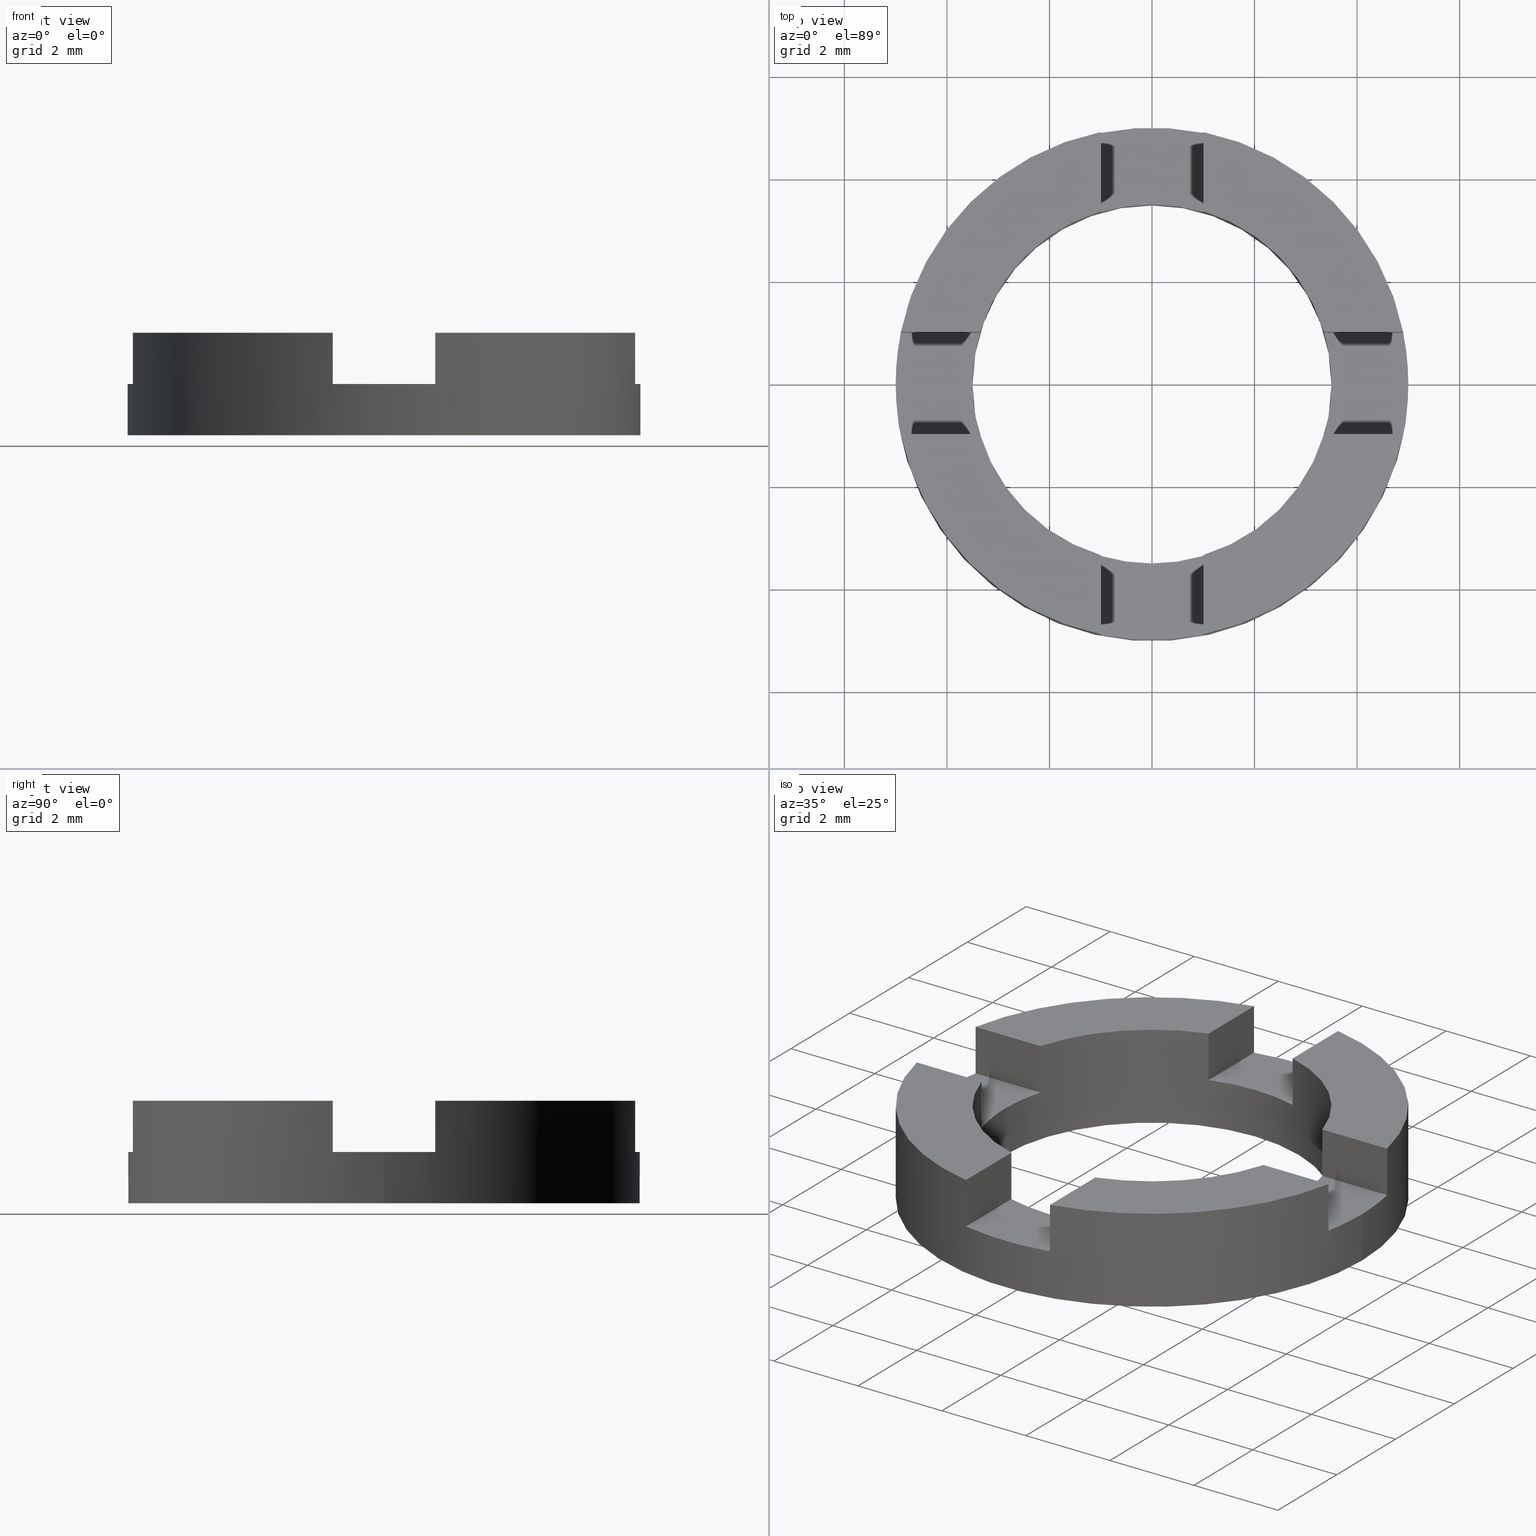
[diagram: canonical four-view strip — front | top / right | iso, engineering-drawing reading convention]
A machine part, canonical four-view strip (front | top / right | iso — engineering-drawing reading convention). The complete STEP part file that produces these views, byte-faithful:
ISO-10303-21;
HEADER;
FILE_DESCRIPTION (( 'STEP AP203' ),
    '1' );
FILE_NAME ('514025.step',
    '2024-12-24T07:07:24',
    ( '' ),
    ( '' ),
    'SwSTEP 2.0',
    'SolidWorks 2020',
    '' );
FILE_SCHEMA (( 'CONFIG_CONTROL_DESIGN' ));
ENDSEC;

DATA;
#1 = CARTESIAN_POINT ( 'NONE',  ( 0.000000000000000000, 0.000000000000000000, 2.000000000000000000 ) ) ;
#2 = CARTESIAN_POINT ( 'NONE',  ( -0.9999999999996526112, -3.354101966249788180, 2.000000000000000000 ) ) ;
#3 = AXIS2_PLACEMENT_3D ( 'NONE', #311, #383, #80 ) ;
#4 = CIRCLE ( 'NONE', #725, 3.500000000000000000 ) ;
#5 = FACE_BOUND ( 'NONE', #195, .T. ) ;
#6 = DIRECTION ( 'NONE',  ( -1.000000000000000000, 0.000000000000000000, -0.000000000000000000 ) ) ;
#7 = ORIENTED_EDGE ( 'NONE', *, *, #703, .T. ) ;
#8 = CARTESIAN_POINT ( 'NONE',  ( -0.9999999999996526112, -3.305037895306154550, 1.000000000000000000 ) ) ;
#9 = FACE_OUTER_BOUND ( 'NONE', #409, .T. ) ;
#10 = VERTEX_POINT ( 'NONE', #339 ) ;
#11 = CARTESIAN_POINT ( 'NONE',  ( 0.000000000000000000, 0.000000000000000000, 1.000000000000000000 ) ) ;
#12 = EDGE_CURVE ( 'NONE', #44, #113, #588, .T. ) ;
#13 = ORIENTED_EDGE ( 'NONE', *, *, #637, .F. ) ;
#14 = DIRECTION ( 'NONE',  ( -1.000000000000000000, 0.000000000000000000, 0.000000000000000000 ) ) ;
#15 = VERTEX_POINT ( 'NONE', #667 ) ;
#16 = CARTESIAN_POINT ( 'NONE',  ( 0.000000000000000000, 0.000000000000000000, 1.000000000000000000 ) ) ;
#17 = ORIENTED_EDGE ( 'NONE', *, *, #342, .T. ) ;
#18 = VECTOR ( 'NONE', #307, 1000.000000000000000 ) ;
#19 = VECTOR ( 'NONE', #26, 1000.000000000000000 ) ;
#20 = EDGE_CURVE ( 'NONE', #636, #141, #66, .T. ) ;
#21 = DIRECTION ( 'NONE',  ( 1.279323200775837961E-16, -1.000000000000000000, 0.000000000000000000 ) ) ;
#22 = LOCAL_TIME ( 15, 7, 24.00000000000000000, #585 ) ;
#23 = ORIENTED_EDGE ( 'NONE', *, *, #619, .T. ) ;
#24 = PLANE ( 'NONE',  #434 ) ;
#25 = ORIENTED_EDGE ( 'NONE', *, *, #654, .F. ) ;
#26 = DIRECTION ( 'NONE',  ( -0.000000000000000000, -0.000000000000000000, -1.000000000000000000 ) ) ;
#27 = ORIENTED_EDGE ( 'NONE', *, *, #650, .T. ) ;
#28 = DIRECTION ( 'NONE',  ( -1.000000000000000000, 0.000000000000000000, 0.000000000000000000 ) ) ;
#29 = EDGE_LOOP ( 'NONE', ( #13, #769, #165, #620 ) ) ;
#30 = ADVANCED_FACE ( 'NONE', ( #300 ), #545, .T. ) ;
#31 = LINE ( 'NONE', #517, #391 ) ;
#32 = DATE_AND_TIME ( #402, #439 ) ;
#33 = AXIS2_PLACEMENT_3D ( 'NONE', #609, #430, #733 ) ;
#34 = LINE ( 'NONE', #691, #488 ) ;
#35 = VECTOR ( 'NONE', #132, 1000.000000000000000 ) ;
#36 = VECTOR ( 'NONE', #328, 1000.000000000000000 ) ;
#37 =( NAMED_UNIT ( * ) PLANE_ANGLE_UNIT ( ) SI_UNIT ( $, .RADIAN. ) );
#38 = ADVANCED_FACE ( 'NONE', ( #304 ), #777, .F. ) ;
#39 = APPLICATION_CONTEXT ( 'configuration controlled 3d designs of mechanical parts and assemblies' ) ;
#40 = DATE_AND_TIME ( #395, #22 ) ;
#41 = VERTEX_POINT ( 'NONE', #360 ) ;
#42 = EDGE_CURVE ( 'NONE', #167, #532, #237, .T. ) ;
#43 = CALENDAR_DATE ( 2024, 24, 12 ) ;
#44 = VERTEX_POINT ( 'NONE', #130 ) ;
#45 = VECTOR ( 'NONE', #578, 1000.000000000000000 ) ;
#46 = DIRECTION ( 'NONE',  ( 0.000000000000000000, 0.000000000000000000, 1.000000000000000000 ) ) ;
#47 = ORIENTED_EDGE ( 'NONE', *, *, #663, .F. ) ;
#48 = FACE_OUTER_BOUND ( 'NONE', #500, .T. ) ;
#49 = ORIENTED_EDGE ( 'NONE', *, *, #196, .F. ) ;
#50 = LINE ( 'NONE', #234, #602 ) ;
#51 = CC_DESIGN_PERSON_AND_ORGANIZATION_ASSIGNMENT ( #525, #760, ( #496 ) ) ;
#52 = LINE ( 'NONE', #468, #676 ) ;
#53 = VERTEX_POINT ( 'NONE', #478 ) ;
#54 = VECTOR ( 'NONE', #416, 1000.000000000000000 ) ;
#55 = CARTESIAN_POINT ( 'NONE',  ( 0.000000000000000000, 0.000000000000000000, 0.000000000000000000 ) ) ;
#56 = CC_DESIGN_APPROVAL ( #562, ( #697 ) ) ;
#57 = CARTESIAN_POINT ( 'NONE',  ( 3.354101966249698030, -0.9999999999999547029, 2.000000000000000000 ) ) ;
#58 = DIRECTION ( 'NONE',  ( -0.000000000000000000, -0.000000000000000000, -1.000000000000000000 ) ) ;
#59 = CARTESIAN_POINT ( 'NONE',  ( 0.000000000000000000, 0.000000000000000000, 1.000000000000000000 ) ) ;
#60 = EDGE_CURVE ( 'NONE', #374, #10, #364, .T. ) ;
#61 = DIRECTION ( 'NONE',  ( 1.000000000000000000, 0.000000000000000000, -0.000000000000000000 ) ) ;
#62 = DIRECTION ( 'NONE',  ( 0.000000000000000000, 0.000000000000000000, 1.000000000000000000 ) ) ;
#63 = LINE ( 'NONE', #535, #54 ) ;
#64 = DIRECTION ( 'NONE',  ( 1.000000000000000000, 0.000000000000000000, -0.000000000000000000 ) ) ;
#65 = EDGE_CURVE ( 'NONE', #319, #113, #632, .T. ) ;
#66 = LINE ( 'NONE', #483, #536 ) ;
#67 = ORIENTED_EDGE ( 'NONE', *, *, #501, .T. ) ;
#68 = CARTESIAN_POINT ( 'NONE',  ( -3.354101966249594557, -1.000000000000301981, 2.000000000000000000 ) ) ;
#69 = ORIENTED_EDGE ( 'NONE', *, *, #342, .F. ) ;
#70 = AXIS2_PLACEMENT_3D ( 'NONE', #576, #256, #199 ) ;
#71 = AXIS2_PLACEMENT_3D ( 'NONE', #713, #709, #169 ) ;
#72 = EDGE_CURVE ( 'NONE', #594, #405, #117, .T. ) ;
#73 = DIRECTION ( 'NONE',  ( 1.000000000000000000, 0.000000000000000000, 0.000000000000000000 ) ) ;
#74 = ORIENTED_EDGE ( 'NONE', *, *, #332, .F. ) ;
#75 = CARTESIAN_POINT ( 'NONE',  ( -5.000000000000000000, 0.000000000000000000, 1.000000000000000000 ) ) ;
#76 = ORIENTED_EDGE ( 'NONE', *, *, #748, .T. ) ;
#77 = DESIGN_CONTEXT ( 'detailed design', #521, 'design' ) ;
#78 = DIRECTION ( 'NONE',  ( 0.000000000000000000, 0.000000000000000000, 1.000000000000000000 ) ) ;
#79 = ORIENTED_EDGE ( 'NONE', *, *, #338, .F. ) ;
#80 = DIRECTION ( 'NONE',  ( -1.279323200775837468E-16, 1.000000000000000000, 0.000000000000000000 ) ) ;
#81 = ORIENTED_EDGE ( 'NONE', *, *, #207, .T. ) ;
#82 = CARTESIAN_POINT ( 'NONE',  ( 4.898979485566346881, 1.000000000000045519, 2.000000000000000000 ) ) ;
#83 = VERTEX_POINT ( 'NONE', #604 ) ;
#84 = DIRECTION ( 'NONE',  ( 0.000000000000000000, 0.000000000000000000, -1.000000000000000000 ) ) ;
#85 = EDGE_LOOP ( 'NONE', ( #542, #277, #389, #268 ) ) ;
#86 = VECTOR ( 'NONE', #263, 1000.000000000000000 ) ;
#87 = CIRCLE ( 'NONE', #280, 5.000000000000000000 ) ;
#88 = FACE_OUTER_BOUND ( 'NONE', #204, .T. ) ;
#89 = ORIENTED_EDGE ( 'NONE', *, *, #708, .F. ) ;
#90 = CARTESIAN_POINT ( 'NONE',  ( 0.000000000000000000, 0.000000000000000000, 2.000000000000000000 ) ) ;
#91 = ORIENTED_EDGE ( 'NONE', *, *, #491, .T. ) ;
#92 = EDGE_CURVE ( 'NONE', #264, #10, #356, .T. ) ;
#93 = DIRECTION ( 'NONE',  ( 1.000000000000000000, 0.000000000000000000, 0.000000000000000000 ) ) ;
#94 = CARTESIAN_POINT ( 'NONE',  ( 1.000000000000000000, 4.898979485566356651, 1.000000000000000000 ) ) ;
#95 = DATE_TIME_ROLE ( 'classification_date' ) ;
#96 = CLOSED_SHELL ( 'NONE', ( #260, #30, #591, #420, #581, #711, #599, #662, #362, #302, #681, #399, #225, #316, #38, #376, #643, #524, #629, #102, #286 ) ) ;
#97 = APPROVAL_PERSON_ORGANIZATION ( #694, #562, #162 ) ;
#98 = EDGE_CURVE ( 'NONE', #532, #44, #305, .T. ) ;
#99 = LOCAL_TIME ( 15, 7, 24.00000000000000000, #454 ) ;
#100 = PERSON_AND_ORGANIZATION ( #472, #435 ) ;
#101 = EDGE_LOOP ( 'NONE', ( #366, #17, #401, #298, #570, #630, #766, #564, #507, #171, #494, #516 ) ) ;
#102 = ADVANCED_FACE ( 'NONE', ( #780 ), #421, .F. ) ;
#103 = ORIENTED_EDGE ( 'NONE', *, *, #606, .F. ) ;
#104 = CARTESIAN_POINT ( 'NONE',  ( 0.000000000000000000, 0.000000000000000000, 1.000000000000000000 ) ) ;
#105 = AXIS2_PLACEMENT_3D ( 'NONE', #11, #320, #511 ) ;
#106 = ORIENTED_EDGE ( 'NONE', *, *, #646, .F. ) ;
#107 = VECTOR ( 'NONE', #125, 1000.000000000000000 ) ;
#108 = CARTESIAN_POINT ( 'NONE',  ( 4.898979485566365533, -0.9999999999999544809, 1.000000000000000000 ) ) ;
#109 = VERTEX_POINT ( 'NONE', #123 ) ;
#110 = CARTESIAN_POINT ( 'NONE',  ( 0.000000000000000000, 0.000000000000000000, 1.000000000000000000 ) ) ;
#111 = EDGE_CURVE ( 'NONE', #627, #577, #222, .T. ) ;
#112 = CARTESIAN_POINT ( 'NONE',  ( -3.354101966249774858, 0.9999999999996979083, 2.000000000000000000 ) ) ;
#113 = VERTEX_POINT ( 'NONE', #247 ) ;
#114 = CARTESIAN_POINT ( 'NONE',  ( 0.000000000000000000, 0.000000000000000000, 2.000000000000000000 ) ) ;
#115 = DIRECTION ( 'NONE',  ( -0.000000000000000000, -0.000000000000000000, -1.000000000000000000 ) ) ;
#116 = EDGE_CURVE ( 'NONE', #600, #436, #731, .T. ) ;
#117 = LINE ( 'NONE', #616, #568 ) ;
#118 = CIRCLE ( 'NONE', #763, 3.500000000000000000 ) ;
#119 = PLANE ( 'NONE',  #340 ) ;
#120 = AXIS2_PLACEMENT_3D ( 'NONE', #631, #78, #682 ) ;
#121 = CC_DESIGN_APPROVAL ( #274, ( #161 ) ) ;
#122 = DIRECTION ( 'NONE',  ( 0.000000000000000000, 0.000000000000000000, 1.000000000000000000 ) ) ;
#123 = CARTESIAN_POINT ( 'NONE',  ( -3.354101966249594557, -1.000000000000301981, 2.000000000000000000 ) ) ;
#124 = CARTESIAN_POINT ( 'NONE',  ( 3.354101966249698030, -0.9999999999999547029, 2.000000000000000000 ) ) ;
#125 = DIRECTION ( 'NONE',  ( -1.279323200775837468E-16, 1.000000000000000000, -0.000000000000000000 ) ) ;
#126 = DIRECTION ( 'NONE',  ( -0.000000000000000000, -0.000000000000000000, -1.000000000000000000 ) ) ;
#127 = CARTESIAN_POINT ( 'NONE',  ( 1.000000000000347722, -4.898979485566285597, 2.000000000000000000 ) ) ;
#128 = ORIENTED_EDGE ( 'NONE', *, *, #501, .F. ) ;
#129 = DIRECTION ( 'NONE',  ( -1.279323200775836975E-16, 1.000000000000000000, 0.000000000000000000 ) ) ;
#130 = CARTESIAN_POINT ( 'NONE',  ( 3.500000000000000000, 4.286263797015736595E-16, 1.000000000000000000 ) ) ;
#131 = ORIENTED_EDGE ( 'NONE', *, *, #60, .F. ) ;
#132 = DIRECTION ( 'NONE',  ( -1.000000000000000000, -2.558646401551675429E-16, 0.000000000000000000 ) ) ;
#133 = EDGE_LOOP ( 'NONE', ( #74, #463, #23, #257, #248, #380 ) ) ;
#134 = CIRCLE ( 'NONE', #230, 5.000000000000000000 ) ;
#135 =( GEOMETRIC_REPRESENTATION_CONTEXT ( 3 ) GLOBAL_UNCERTAINTY_ASSIGNED_CONTEXT ( ( #551 ) ) GLOBAL_UNIT_ASSIGNED_CONTEXT ( ( #583, #37, #704 ) ) REPRESENTATION_CONTEXT ( 'NONE', 'WORKASPACE' ) );
#136 = CIRCLE ( 'NONE', #665, 5.000000000000000000 ) ;
#137 = CARTESIAN_POINT ( 'NONE',  ( 0.000000000000000000, 0.000000000000000000, 0.000000000000000000 ) ) ;
#138 = ORIENTED_EDGE ( 'NONE', *, *, #338, .T. ) ;
#139 = DIRECTION ( 'NONE',  ( -0.000000000000000000, -0.000000000000000000, -1.000000000000000000 ) ) ;
#140 = PRODUCT_RELATED_PRODUCT_CATEGORY ( 'detail', '', ( #496 ) ) ;
#141 = VERTEX_POINT ( 'NONE', #612 ) ;
#142 = FACE_OUTER_BOUND ( 'NONE', #101, .T. ) ;
#143 = EDGE_LOOP ( 'NONE', ( #209, #255, #441, #47 ) ) ;
#144 = CARTESIAN_POINT ( 'NONE',  ( -4.898979485566417935, 0.9999999999996975752, 2.000000000000000000 ) ) ;
#145 = ORIENTED_EDGE ( 'NONE', *, *, #240, .T. ) ;
#146 = DIRECTION ( 'NONE',  ( 0.000000000000000000, 0.000000000000000000, 1.000000000000000000 ) ) ;
#147 = ORIENTED_EDGE ( 'NONE', *, *, #637, .T. ) ;
#148 = DIRECTION ( 'NONE',  ( 1.000000000000000000, 1.279323200775837468E-16, 0.000000000000000000 ) ) ;
#149 = EDGE_CURVE ( 'NONE', #372, #687, #365, .T. ) ;
#150 = ORIENTED_EDGE ( 'NONE', *, *, #650, .F. ) ;
#151 = CIRCLE ( 'NONE', #537, 5.000000000000000000 ) ;
#152 = CIRCLE ( 'NONE', #590, 5.000000000000000000 ) ;
#153 = DIRECTION ( 'NONE',  ( -1.000000000000000000, -2.558646401551675429E-16, 0.000000000000000000 ) ) ;
#154 = PERSON_AND_ORGANIZATION ( #472, #435 ) ;
#155 = DIRECTION ( 'NONE',  ( 1.000000000000000000, 0.000000000000000000, 0.000000000000000000 ) ) ;
#156 = CALENDAR_DATE ( 2024, 24, 12 ) ;
#157 = EDGE_CURVE ( 'NONE', #44, #480, #353, .T. ) ;
#158 = PERSON_AND_ORGANIZATION_ROLE ( 'creator' ) ;
#159 = AXIS2_PLACEMENT_3D ( 'NONE', #358, #297, #293 ) ;
#160 = VECTOR ( 'NONE', #246, 1000.000000000000000 ) ;
#161 = PRODUCT_DEFINITION_FORMATION_WITH_SPECIFIED_SOURCE ( '�κ�', '', #496, .NOT_KNOWN. ) ;
#162 = APPROVAL_ROLE ( '' ) ;
#163 = ORIENTED_EDGE ( 'NONE', *, *, #173, .F. ) ;
#164 = EDGE_CURVE ( 'NONE', #674, #321, #245, .T. ) ;
#165 = ORIENTED_EDGE ( 'NONE', *, *, #60, .T. ) ;
#166 = CARTESIAN_POINT ( 'NONE',  ( 1.000000000000347500, -3.305037895306153661, 2.000000000000000000 ) ) ;
#167 = VERTEX_POINT ( 'NONE', #720 ) ;
#168 = EDGE_CURVE ( 'NONE', #83, #687, #322, .T. ) ;
#169 = DIRECTION ( 'NONE',  ( 1.000000000000000000, 0.000000000000000000, 0.000000000000000000 ) ) ;
#170 = AXIS2_PLACEMENT_3D ( 'NONE', #59, #238, #242 ) ;
#171 = ORIENTED_EDGE ( 'NONE', *, *, #332, .T. ) ;
#172 = CIRCLE ( 'NONE', #554, 3.500000000000000000 ) ;
#173 = EDGE_CURVE ( 'NONE', #436, #467, #63, .T. ) ;
#174 = CARTESIAN_POINT ( 'NONE',  ( 0.000000000000000000, 0.000000000000000000, 1.000000000000000000 ) ) ;
#175 = ORIENTED_EDGE ( 'NONE', *, *, #20, .F. ) ;
#176 = FACE_OUTER_BOUND ( 'NONE', #193, .T. ) ;
#177 = EDGE_CURVE ( 'NONE', #372, #674, #552, .T. ) ;
#178 = DIRECTION ( 'NONE',  ( 1.000000000000000000, 0.000000000000000000, 0.000000000000000000 ) ) ;
#179 = DIRECTION ( 'NONE',  ( 0.000000000000000000, 0.000000000000000000, 1.000000000000000000 ) ) ;
#180 = CARTESIAN_POINT ( 'NONE',  ( -5.000000000000000000, 0.000000000000000000, 2.000000000000000000 ) ) ;
#181 = CARTESIAN_POINT ( 'NONE',  ( 0.000000000000000000, 0.000000000000000000, 2.000000000000000000 ) ) ;
#182 = CARTESIAN_POINT ( 'NONE',  ( -0.9999999999996523892, -4.898979485566426817, 2.000000000000000000 ) ) ;
#183 = AXIS2_PLACEMENT_3D ( 'NONE', #249, #557, #361 ) ;
#184 = DIRECTION ( 'NONE',  ( 0.000000000000000000, 0.000000000000000000, -1.000000000000000000 ) ) ;
#185 = VECTOR ( 'NONE', #423, 1000.000000000000000 ) ;
#186 = EDGE_CURVE ( 'NONE', #109, #467, #661, .T. ) ;
#187 = CC_DESIGN_DATE_AND_TIME_ASSIGNMENT ( #32, #462, ( #697 ) ) ;
#188 = LINE ( 'NONE', #553, #185 ) ;
#189 = CARTESIAN_POINT ( 'NONE',  ( 0.000000000000000000, 0.000000000000000000, 2.000000000000000000 ) ) ;
#190 = LINE ( 'NONE', #127, #390 ) ;
#191 = LINE ( 'NONE', #254, #651 ) ;
#192 = CARTESIAN_POINT ( 'NONE',  ( -4.898979485566295367, -1.000000000000302425, 2.000000000000000000 ) ) ;
#193 = EDGE_LOOP ( 'NONE', ( #744, #447, #224, #653, #348, #251, #648, #49, #287, #746, #431, #387 ) ) ;
#194 = CARTESIAN_POINT ( 'NONE',  ( -1.000000000000000000, 4.898979485566356651, 2.000000000000000000 ) ) ;
#195 = EDGE_LOOP ( 'NONE', ( #443, #736 ) ) ;
#196 = EDGE_CURVE ( 'NONE', #41, #374, #495, .T. ) ;
#197 = CARTESIAN_POINT ( 'NONE',  ( 0.000000000000000000, 0.000000000000000000, 1.000000000000000000 ) ) ;
#198 = EDGE_LOOP ( 'NONE', ( #526, #312, #645, #128 ) ) ;
#199 = DIRECTION ( 'NONE',  ( -1.000000000000000000, 0.000000000000000000, -0.000000000000000000 ) ) ;
#200 = ORIENTED_EDGE ( 'NONE', *, *, #523, .T. ) ;
#201 = CIRCLE ( 'NONE', #159, 3.500000000000000000 ) ;
#202 = AXIS2_PLACEMENT_3D ( 'NONE', #614, #146, #377 ) ;
#203 = DIRECTION ( 'NONE',  ( 0.000000000000000000, -0.000000000000000000, -1.000000000000000000 ) ) ;
#204 = EDGE_LOOP ( 'NONE', ( #7, #685, #163, #559 ) ) ;
#205 = CARTESIAN_POINT ( 'NONE',  ( -3.305037895305853013, 0.9999999999996979083, 1.000000000000000000 ) ) ;
#206 = VERTEX_POINT ( 'NONE', #194 ) ;
#207 = EDGE_CURVE ( 'NONE', #229, #41, #118, .T. ) ;
#208 = CARTESIAN_POINT ( 'NONE',  ( -1.000000000000000000, 3.305037895305897422, 1.000000000000000000 ) ) ;
#209 = ORIENTED_EDGE ( 'NONE', *, *, #606, .T. ) ;
#210 = CARTESIAN_POINT ( 'NONE',  ( 3.305037895306199847, -0.9999999999999547029, 1.000000000000000000 ) ) ;
#211 = ORIENTED_EDGE ( 'NONE', *, *, #168, .T. ) ;
#212 = PERSON_AND_ORGANIZATION ( #472, #435 ) ;
#213 = SHAPE_DEFINITION_REPRESENTATION ( #426, #465 ) ;
#214 = EDGE_CURVE ( 'NONE', #530, #327, #589, .T. ) ;
#215 = AXIS2_PLACEMENT_3D ( 'NONE', #114, #671, #546 ) ;
#216 = VECTOR ( 'NONE', #363, 1000.000000000000000 ) ;
#217 = DIRECTION ( 'NONE',  ( 0.000000000000000000, 0.000000000000000000, 1.000000000000000000 ) ) ;
#218 = APPROVAL_DATE_TIME ( #759, #562 ) ;
#219 = DIRECTION ( 'NONE',  ( 0.000000000000000000, 0.000000000000000000, 1.000000000000000000 ) ) ;
#220 = APPROVAL_DATE_TIME ( #273, #548 ) ;
#221 = ORIENTED_EDGE ( 'NONE', *, *, #72, .T. ) ;
#222 = CIRCLE ( 'NONE', #754, 3.500000000000000000 ) ;
#223 = VECTOR ( 'NONE', #21, 1000.000000000000000 ) ;
#224 = ORIENTED_EDGE ( 'NONE', *, *, #65, .F. ) ;
#225 = ADVANCED_FACE ( 'NONE', ( #541 ), #119, .F. ) ;
#226 = PLANE ( 'NONE',  #407 ) ;
#227 = ORIENTED_EDGE ( 'NONE', *, *, #385, .T. ) ;
#228 = DIRECTION ( 'NONE',  ( 1.000000000000000000, 0.000000000000000000, 0.000000000000000000 ) ) ;
#229 = VERTEX_POINT ( 'NONE', #668 ) ;
#230 = AXIS2_PLACEMENT_3D ( 'NONE', #666, #717, #295 ) ;
#231 = DIRECTION ( 'NONE',  ( 1.000000000000000000, 0.000000000000000000, 0.000000000000000000 ) ) ;
#232 = AXIS2_PLACEMENT_3D ( 'NONE', #587, #396, #335 ) ;
#233 = ORIENTED_EDGE ( 'NONE', *, *, #411, .T. ) ;
#234 = CARTESIAN_POINT ( 'NONE',  ( 3.305037895306199403, 1.000000000000045297, 1.000000000000000000 ) ) ;
#235 = EDGE_CURVE ( 'NONE', #623, #53, #201, .T. ) ;
#236 = CARTESIAN_POINT ( 'NONE',  ( 1.000000000000347500, -3.354101966249581235, 2.000000000000000000 ) ) ;
#237 = LINE ( 'NONE', #428, #527 ) ;
#238 = DIRECTION ( 'NONE',  ( 0.000000000000000000, -0.000000000000000000, 1.000000000000000000 ) ) ;
#239 = LINE ( 'NONE', #404, #470 ) ;
#240 = EDGE_CURVE ( 'NONE', #480, #577, #301, .T. ) ;
#241 = CARTESIAN_POINT ( 'NONE',  ( 1.000000000000000000, 3.305037895305898310, 1.000000000000000000 ) ) ;
#242 = DIRECTION ( 'NONE',  ( 1.000000000000000000, 0.000000000000000000, -0.000000000000000000 ) ) ;
#243 = DIRECTION ( 'NONE',  ( 1.000000000000000000, 2.558646401551673950E-16, 0.000000000000000000 ) ) ;
#244 = DIRECTION ( 'NONE',  ( 0.000000000000000000, 0.000000000000000000, -1.000000000000000000 ) ) ;
#245 = LINE ( 'NONE', #781, #664 ) ;
#246 = DIRECTION ( 'NONE',  ( 0.000000000000000000, 1.000000000000000000, 0.000000000000000000 ) ) ;
#247 = CARTESIAN_POINT ( 'NONE',  ( 3.500000000000000000, 4.286263797015736595E-16, 0.000000000000000000 ) ) ;
#248 = ORIENTED_EDGE ( 'NONE', *, *, #718, .T. ) ;
#249 = CARTESIAN_POINT ( 'NONE',  ( 0.000000000000000000, 0.000000000000000000, 1.000000000000000000 ) ) ;
#250 = DIRECTION ( 'NONE',  ( 0.000000000000000000, 0.000000000000000000, 1.000000000000000000 ) ) ;
#251 = ORIENTED_EDGE ( 'NONE', *, *, #186, .F. ) ;
#252 = DIRECTION ( 'NONE',  ( -1.000000000000000000, 0.000000000000000000, 0.000000000000000000 ) ) ;
#253 = ORIENTED_EDGE ( 'NONE', *, *, #513, .F. ) ;
#254 = CARTESIAN_POINT ( 'NONE',  ( 3.305037895306199403, 1.000000000000045297, 2.000000000000000000 ) ) ;
#255 = ORIENTED_EDGE ( 'NONE', *, *, #42, .T. ) ;
#256 = DIRECTION ( 'NONE',  ( 0.000000000000000000, 0.000000000000000000, -1.000000000000000000 ) ) ;
#257 = ORIENTED_EDGE ( 'NONE', *, *, #235, .T. ) ;
#258 = AXIS2_PLACEMENT_3D ( 'NONE', #210, #446, #442 ) ;
#259 = AXIS2_PLACEMENT_3D ( 'NONE', #181, #770, #178 ) ;
#260 = ADVANCED_FACE ( 'NONE', ( #176 ), #347, .F. ) ;
#261 = DIRECTION ( 'NONE',  ( -0.000000000000000000, -0.000000000000000000, -1.000000000000000000 ) ) ;
#262 = ORIENTED_EDGE ( 'NONE', *, *, #12, .F. ) ;
#263 = DIRECTION ( 'NONE',  ( 1.000000000000000000, 1.279323200775837468E-16, 0.000000000000000000 ) ) ;
#264 = VERTEX_POINT ( 'NONE', #605 ) ;
#265 = CARTESIAN_POINT ( 'NONE',  ( 0.000000000000000000, 0.000000000000000000, 1.000000000000000000 ) ) ;
#266 = CARTESIAN_POINT ( 'NONE',  ( 4.898979485566346881, 1.000000000000045519, 2.000000000000000000 ) ) ;
#267 = EDGE_CURVE ( 'NONE', #530, #656, #190, .T. ) ;
#268 = ORIENTED_EDGE ( 'NONE', *, *, #748, .F. ) ;
#269 = DIRECTION ( 'NONE',  ( 0.000000000000000000, 0.000000000000000000, 1.000000000000000000 ) ) ;
#270 = PERSON_AND_ORGANIZATION_ROLE ( 'classification_officer' ) ;
#271 = AXIS2_PLACEMENT_3D ( 'NONE', #558, #261, #381 ) ;
#272 = LINE ( 'NONE', #455, #36 ) ;
#273 = DATE_AND_TIME ( #156, #99 ) ;
#274 = APPROVAL ( #336, 'δָ��' ) ;
#275 = APPLICATION_PROTOCOL_DEFINITION ( 'international standard', 'config_control_design', 1994, #39 ) ;
#276 = PERSON_AND_ORGANIZATION ( #472, #435 ) ;
#277 = ORIENTED_EDGE ( 'NONE', *, *, #20, .T. ) ;
#278 = EDGE_CURVE ( 'NONE', #738, #532, #50, .T. ) ;
#279 = AXIS2_PLACEMENT_3D ( 'NONE', #55, #413, #550 ) ;
#280 = AXIS2_PLACEMENT_3D ( 'NONE', #659, #46, #603 ) ;
#281 = PERSON_AND_ORGANIZATION ( #472, #435 ) ;
#282 = CARTESIAN_POINT ( 'NONE',  ( 3.500000000000000000, 4.286263797015736595E-16, 2.000000000000000000 ) ) ;
#283 = DIRECTION ( 'NONE',  ( 0.000000000000000000, 0.000000000000000000, 1.000000000000000000 ) ) ;
#284 = ORIENTED_EDGE ( 'NONE', *, *, #513, .T. ) ;
#285 = CARTESIAN_POINT ( 'NONE',  ( 0.000000000000000000, 0.000000000000000000, 2.000000000000000000 ) ) ;
#286 = ADVANCED_FACE ( 'NONE', ( #475 ), #778, .T. ) ;
#287 = ORIENTED_EDGE ( 'NONE', *, *, #207, .F. ) ;
#288 = DIRECTION ( 'NONE',  ( 1.279323200775837961E-16, -1.000000000000000000, 0.000000000000000000 ) ) ;
#289 = VECTOR ( 'NONE', #425, 1000.000000000000000 ) ;
#290 = LINE ( 'NONE', #768, #775 ) ;
#291 = ORIENTED_EDGE ( 'NONE', *, *, #646, .T. ) ;
#292 = APPROVAL_PERSON_ORGANIZATION ( #329, #548, #518 ) ;
#293 = DIRECTION ( 'NONE',  ( -1.000000000000000000, 0.000000000000000000, 0.000000000000000000 ) ) ;
#294 = CC_DESIGN_DATE_AND_TIME_ASSIGNMENT ( #641, #95, ( #357 ) ) ;
#295 = DIRECTION ( 'NONE',  ( 1.000000000000000000, 0.000000000000000000, 0.000000000000000000 ) ) ;
#296 = CARTESIAN_POINT ( 'NONE',  ( 0.000000000000000000, 0.000000000000000000, 1.000000000000000000 ) ) ;
#297 = DIRECTION ( 'NONE',  ( 0.000000000000000000, -0.000000000000000000, -1.000000000000000000 ) ) ;
#298 = ORIENTED_EDGE ( 'NONE', *, *, #214, .F. ) ;
#299 = DIRECTION ( 'NONE',  ( -0.000000000000000000, -0.000000000000000000, -1.000000000000000000 ) ) ;
#300 = FACE_OUTER_BOUND ( 'NONE', #701, .T. ) ;
#301 = LINE ( 'NONE', #124, #289 ) ;
#302 = ADVANCED_FACE ( 'NONE', ( #479 ), #24, .F. ) ;
#303 = CARTESIAN_POINT ( 'NONE',  ( 1.000000000000347722, -4.898979485566285597, 1.000000000000000000 ) ) ;
#304 = FACE_OUTER_BOUND ( 'NONE', #429, .T. ) ;
#305 = CIRCLE ( 'NONE', #459, 3.500000000000000000 ) ;
#306 = ORIENTED_EDGE ( 'NONE', *, *, #543, .T. ) ;
#307 = DIRECTION ( 'NONE',  ( 0.000000000000000000, 0.000000000000000000, 1.000000000000000000 ) ) ;
#308 = AXIS2_PLACEMENT_3D ( 'NONE', #448, #640, #93 ) ;
#309 = CYLINDRICAL_SURFACE ( 'NONE', #271, 5.000000000000000000 ) ;
#310 = ORIENTED_EDGE ( 'NONE', *, *, #98, .T. ) ;
#311 = CARTESIAN_POINT ( 'NONE',  ( 1.000000000000347500, -3.305037895306153661, 1.000000000000000000 ) ) ;
#312 = ORIENTED_EDGE ( 'NONE', *, *, #456, .T. ) ;
#313 = LINE ( 'NONE', #677, #107 ) ;
#314 = ORIENTED_EDGE ( 'NONE', *, *, #621, .T. ) ;
#315 = PLANE ( 'NONE',  #70 ) ;
#316 = ADVANCED_FACE ( 'NONE', ( #571 ), #506, .F. ) ;
#317 = EDGE_LOOP ( 'NONE', ( #534, #540, #253, #346 ) ) ;
#318 = DIRECTION ( 'NONE',  ( -1.000000000000000000, -1.279323200775836975E-16, -0.000000000000000000 ) ) ;
#319 = VERTEX_POINT ( 'NONE', #628 ) ;
#320 = DIRECTION ( 'NONE',  ( 0.000000000000000000, 0.000000000000000000, -1.000000000000000000 ) ) ;
#321 = VERTEX_POINT ( 'NONE', #144 ) ;
#322 = CIRCLE ( 'NONE', #279, 5.000000000000000000 ) ;
#323 = CC_DESIGN_PERSON_AND_ORGANIZATION_ASSIGNMENT ( #281, #158, ( #697 ) ) ;
#324 = PLANE ( 'NONE',  #615 ) ;
#325 = ORIENTED_EDGE ( 'NONE', *, *, #471, .T. ) ;
#326 = FACE_OUTER_BOUND ( 'NONE', #133, .T. ) ;
#327 = VERTEX_POINT ( 'NONE', #624 ) ;
#328 = DIRECTION ( 'NONE',  ( -0.000000000000000000, -1.000000000000000000, -0.000000000000000000 ) ) ;
#329 = PERSON_AND_ORGANIZATION ( #472, #435 ) ;
#330 = DIRECTION ( 'NONE',  ( 0.000000000000000000, 0.000000000000000000, 1.000000000000000000 ) ) ;
#331 = APPROVAL_DATE_TIME ( #40, #274 ) ;
#332 = EDGE_CURVE ( 'NONE', #436, #372, #151, .T. ) ;
#333 = CIRCLE ( 'NONE', #642, 3.500000000000000000 ) ;
#334 = APPROVAL_PERSON_ORGANIZATION ( #100, #274, #529 ) ;
#335 = DIRECTION ( 'NONE',  ( 1.000000000000000000, 0.000000000000000000, 0.000000000000000000 ) ) ;
#336 = APPROVAL_STATUS ( 'not_yet_approved' ) ;
#337 = ORIENTED_EDGE ( 'NONE', *, *, #164, .F. ) ;
#338 = EDGE_CURVE ( 'NONE', #480, #505, #675, .T. ) ;
#339 = CARTESIAN_POINT ( 'NONE',  ( -0.9999999999996523892, -4.898979485566426817, 2.000000000000000000 ) ) ;
#340 = AXIS2_PLACEMENT_3D ( 'NONE', #8, #657, #288 ) ;
#341 = AXIS2_PLACEMENT_3D ( 'NONE', #706, #647, #64 ) ;
#342 = EDGE_CURVE ( 'NONE', #15, #505, #486, .T. ) ;
#343 = DIRECTION ( 'NONE',  ( 1.000000000000000000, 0.000000000000000000, -0.000000000000000000 ) ) ;
#344 = VERTEX_POINT ( 'NONE', #266 ) ;
#345 = CARTESIAN_POINT ( 'NONE',  ( 0.000000000000000000, 0.000000000000000000, 2.000000000000000000 ) ) ;
#346 = ORIENTED_EDGE ( 'NONE', *, *, #214, .T. ) ;
#347 = CYLINDRICAL_SURFACE ( 'NONE', #215, 3.500000000000000000 ) ;
#348 = ORIENTED_EDGE ( 'NONE', *, *, #619, .F. ) ;
#349 = CARTESIAN_POINT ( 'NONE',  ( -3.354101966249594557, -1.000000000000301981, 1.000000000000000000 ) ) ;
#350 = ORIENTED_EDGE ( 'NONE', *, *, #464, .F. ) ;
#351 = DIRECTION ( 'NONE',  ( -1.000000000000000000, -1.279323200775836975E-16, -0.000000000000000000 ) ) ;
#352 = ORIENTED_EDGE ( 'NONE', *, *, #464, .T. ) ;
#353 = CIRCLE ( 'NONE', #33, 3.500000000000000000 ) ;
#354 = CARTESIAN_POINT ( 'NONE',  ( -1.000000000000000000, 4.898979485566356651, 2.000000000000000000 ) ) ;
#355 = VECTOR ( 'NONE', #330, 1000.000000000000000 ) ;
#356 = LINE ( 'NONE', #182, #519 ) ;
#357 = SECURITY_CLASSIFICATION ( '', '', #696 ) ;
#358 = CARTESIAN_POINT ( 'NONE',  ( 0.000000000000000000, 0.000000000000000000, 1.000000000000000000 ) ) ;
#359 = CARTESIAN_POINT ( 'NONE',  ( 3.354101966249698030, -0.9999999999999547029, 1.000000000000000000 ) ) ;
#360 = CARTESIAN_POINT ( 'NONE',  ( -0.9999999999996526112, -3.354101966249788180, 1.000000000000000000 ) ) ;
#361 = DIRECTION ( 'NONE',  ( -1.000000000000000000, 0.000000000000000000, 0.000000000000000000 ) ) ;
#362 = ADVANCED_FACE ( 'NONE', ( #618 ), #635, .F. ) ;
#363 = DIRECTION ( 'NONE',  ( -0.000000000000000000, -0.000000000000000000, -1.000000000000000000 ) ) ;
#364 = LINE ( 'NONE', #660, #397 ) ;
#365 = LINE ( 'NONE', #180, #692 ) ;
#366 = ORIENTED_EDGE ( 'NONE', *, *, #543, .F. ) ;
#367 = EDGE_CURVE ( 'NONE', #656, #264, #740, .T. ) ;
#368 = VECTOR ( 'NONE', #549, 1000.000000000000000 ) ;
#369 = CARTESIAN_POINT ( 'NONE',  ( -1.000000000000000000, 3.354101966249684708, 2.000000000000000000 ) ) ;
#370 = AXIS2_PLACEMENT_3D ( 'NONE', #345, #283, #343 ) ;
#371 = DIRECTION ( 'NONE',  ( 0.000000000000000000, 0.000000000000000000, 1.000000000000000000 ) ) ;
#372 = VERTEX_POINT ( 'NONE', #75 ) ;
#373 = CARTESIAN_POINT ( 'NONE',  ( 0.000000000000000000, 0.000000000000000000, 1.000000000000000000 ) ) ;
#374 = VERTEX_POINT ( 'NONE', #560 ) ;
#375 = AXIS2_PLACEMENT_3D ( 'NONE', #779, #122, #61 ) ;
#376 = ADVANCED_FACE ( 'NONE', ( #679 ), #747, .F. ) ;
#377 = DIRECTION ( 'NONE',  ( 1.000000000000000000, 0.000000000000000000, -0.000000000000000000 ) ) ;
#378 = ORIENTED_EDGE ( 'NONE', *, *, #782, .T. ) ;
#379 = DIRECTION ( 'NONE',  ( -2.558646401551675429E-16, 1.000000000000000000, 0.000000000000000000 ) ) ;
#380 = ORIENTED_EDGE ( 'NONE', *, *, #177, .F. ) ;
#381 = DIRECTION ( 'NONE',  ( -1.000000000000000000, 0.000000000000000000, 0.000000000000000000 ) ) ;
#382 = EDGE_LOOP ( 'NONE', ( #561, #714, #103, #91 ) ) ;
#383 = DIRECTION ( 'NONE',  ( 1.000000000000000000, 1.279323200775837468E-16, 0.000000000000000000 ) ) ;
#384 = EDGE_LOOP ( 'NONE', ( #79, #145, #227, #476 ) ) ;
#385 = EDGE_CURVE ( 'NONE', #577, #327, #565, .T. ) ;
#386 = PLANE ( 'NONE',  #633 ) ;
#387 = ORIENTED_EDGE ( 'NONE', *, *, #240, .F. ) ;
#388 = CARTESIAN_POINT ( 'NONE',  ( 3.305037895306199847, -0.9999999999999547029, 1.000000000000000000 ) ) ;
#389 = ORIENTED_EDGE ( 'NONE', *, *, #727, .T. ) ;
#390 = VECTOR ( 'NONE', #597, 1000.000000000000000 ) ;
#391 = VECTOR ( 'NONE', #153, 1000.000000000000000 ) ;
#392 = CARTESIAN_POINT ( 'NONE',  ( 4.898979485566346881, 1.000000000000045519, 1.000000000000000000 ) ) ;
#393 = COORDINATED_UNIVERSAL_TIME_OFFSET ( 8, 0, .AHEAD. ) ;
#394 = CARTESIAN_POINT ( 'NONE',  ( 0.000000000000000000, 0.000000000000000000, 2.000000000000000000 ) ) ;
#395 = CALENDAR_DATE ( 2024, 24, 12 ) ;
#396 = DIRECTION ( 'NONE',  ( 0.000000000000000000, 0.000000000000000000, 1.000000000000000000 ) ) ;
#397 = VECTOR ( 'NONE', #728, 1000.000000000000000 ) ;
#398 = LOCAL_TIME ( 15, 7, 24.00000000000000000, #698 ) ;
#399 = ADVANCED_FACE ( 'NONE', ( #326 ), #315, .F. ) ;
#400 = COORDINATED_UNIVERSAL_TIME_OFFSET ( 8, 0, .AHEAD. ) ;
#401 = ORIENTED_EDGE ( 'NONE', *, *, #749, .T. ) ;
#402 = CALENDAR_DATE ( 2024, 24, 12 ) ;
#403 = ORIENTED_EDGE ( 'NONE', *, *, #573, .T. ) ;
#404 = CARTESIAN_POINT ( 'NONE',  ( -3.354101966249774858, 0.9999999999996979083, 2.000000000000000000 ) ) ;
#405 = VERTEX_POINT ( 'NONE', #515 ) ;
#406 = AXIS2_PLACEMENT_3D ( 'NONE', #241, #489, #722 ) ;
#407 = AXIS2_PLACEMENT_3D ( 'NONE', #174, #414, #655 ) ;
#408 = DIRECTION ( 'NONE',  ( 0.000000000000000000, 0.000000000000000000, 1.000000000000000000 ) ) ;
#409 = EDGE_LOOP ( 'NONE', ( #732, #774 ) ) ;
#410 = PLANE ( 'NONE',  #370 ) ;
#411 = EDGE_CURVE ( 'NONE', #485, #321, #499, .T. ) ;
#412 = ORIENTED_EDGE ( 'NONE', *, *, #761, .T. ) ;
#413 = DIRECTION ( 'NONE',  ( 0.000000000000000000, 0.000000000000000000, 1.000000000000000000 ) ) ;
#414 = DIRECTION ( 'NONE',  ( 0.000000000000000000, 0.000000000000000000, -1.000000000000000000 ) ) ;
#415 = DIRECTION ( 'NONE',  ( 1.000000000000000000, 0.000000000000000000, 0.000000000000000000 ) ) ;
#416 = DIRECTION ( 'NONE',  ( 1.000000000000000000, 2.558646401551673950E-16, -0.000000000000000000 ) ) ;
#417 = AXIS2_PLACEMENT_3D ( 'NONE', #729, #422, #715 ) ;
#418 = CARTESIAN_POINT ( 'NONE',  ( 3.354101966249671385, 1.000000000000045297, 1.000000000000000000 ) ) ;
#419 = AXIS2_PLACEMENT_3D ( 'NONE', #730, #129, #547 ) ;
#420 = ADVANCED_FACE ( 'NONE', ( #477 ), #410, .T. ) ;
#421 = PLANE ( 'NONE',  #406 ) ;
#422 = DIRECTION ( 'NONE',  ( 0.000000000000000000, 0.000000000000000000, 1.000000000000000000 ) ) ;
#423 = DIRECTION ( 'NONE',  ( 1.000000000000000000, 2.558646401551673950E-16, -0.000000000000000000 ) ) ;
#424 = DIRECTION ( 'NONE',  ( 1.000000000000000000, 0.000000000000000000, 0.000000000000000000 ) ) ;
#425 = DIRECTION ( 'NONE',  ( 0.000000000000000000, 0.000000000000000000, 1.000000000000000000 ) ) ;
#426 = PRODUCT_DEFINITION_SHAPE ( 'NONE', 'NONE',  #697 ) ;
#427 = CARTESIAN_POINT ( 'NONE',  ( 1.000000000000347500, -3.354101966249581235, 2.000000000000000000 ) ) ;
#428 = CARTESIAN_POINT ( 'NONE',  ( 3.354101966249671385, 1.000000000000045297, 2.000000000000000000 ) ) ;
#429 = EDGE_LOOP ( 'NONE', ( #27, #81, #147, #707 ) ) ;
#430 = DIRECTION ( 'NONE',  ( 0.000000000000000000, 0.000000000000000000, -1.000000000000000000 ) ) ;
#431 = ORIENTED_EDGE ( 'NONE', *, *, #111, .T. ) ;
#432 = EDGE_CURVE ( 'NONE', #53, #485, #239, .T. ) ;
#433 = PLANE ( 'NONE',  #419 ) ;
#434 = AXIS2_PLACEMENT_3D ( 'NONE', #205, #379, #684 ) ;
#435 = ORGANIZATION ( 'δָ��', 'δָ��', '' ) ;
#436 = VERTEX_POINT ( 'NONE', #607 ) ;
#437 = DIRECTION ( 'NONE',  ( 0.000000000000000000, -0.000000000000000000, -1.000000000000000000 ) ) ;
#438 = ORIENTED_EDGE ( 'NONE', *, *, #432, .T. ) ;
#439 = LOCAL_TIME ( 15, 7, 24.00000000000000000, #400 ) ;
#440 = FACE_OUTER_BOUND ( 'NONE', #143, .T. ) ;
#441 = ORIENTED_EDGE ( 'NONE', *, *, #278, .F. ) ;
#442 = DIRECTION ( 'NONE',  ( 1.000000000000000000, 1.279323200775837468E-16, 0.000000000000000000 ) ) ;
#443 = ORIENTED_EDGE ( 'NONE', *, *, #65, .T. ) ;
#444 = CARTESIAN_POINT ( 'NONE',  ( -3.305037895305852125, -1.000000000000301981, 1.000000000000000000 ) ) ;
#445 = ORIENTED_EDGE ( 'NONE', *, *, #491, .F. ) ;
#446 = DIRECTION ( 'NONE',  ( 1.279323200775837468E-16, -1.000000000000000000, 0.000000000000000000 ) ) ;
#447 = ORIENTED_EDGE ( 'NONE', *, *, #12, .T. ) ;
#448 = CARTESIAN_POINT ( 'NONE',  ( 0.000000000000000000, 0.000000000000000000, 1.000000000000000000 ) ) ;
#449 = PERSON_AND_ORGANIZATION_ROLE ( 'design_supplier' ) ;
#450 = EDGE_CURVE ( 'NONE', #687, #83, #134, .T. ) ;
#451 = AXIS2_PLACEMENT_3D ( 'NONE', #90, #139, #743 ) ;
#452 = VECTOR ( 'NONE', #593, 1000.000000000000000 ) ;
#453 = LINE ( 'NONE', #695, #45 ) ;
#454 = COORDINATED_UNIVERSAL_TIME_OFFSET ( 8, 0, .AHEAD. ) ;
#455 = CARTESIAN_POINT ( 'NONE',  ( -1.000000000000000000, 3.305037895305897422, 2.000000000000000000 ) ) ;
#456 = EDGE_CURVE ( 'NONE', #644, #405, #52, .T. ) ;
#457 = MECHANICAL_CONTEXT ( 'NONE', #39, 'mechanical' ) ;
#458 = EDGE_LOOP ( 'NONE', ( #284, #200, #150, #586 ) ) ;
#459 = AXIS2_PLACEMENT_3D ( 'NONE', #296, #244, #555 ) ;
#460 = CIRCLE ( 'NONE', #120, 3.500000000000000000 ) ;
#461 = CC_DESIGN_APPROVAL ( #548, ( #357 ) ) ;
#462 = DATE_TIME_ROLE ( 'creation_date' ) ;
#463 = ORIENTED_EDGE ( 'NONE', *, *, #173, .T. ) ;
#464 = EDGE_CURVE ( 'NONE', #636, #405, #333, .T. ) ;
#465 = ADVANCED_BREP_SHAPE_REPRESENTATION ( '514025', ( #592, #232 ), #135 ) ;
#466 = PLANE ( 'NONE',  #341 ) ;
#467 = VERTEX_POINT ( 'NONE', #349 ) ;
#468 = CARTESIAN_POINT ( 'NONE',  ( -1.000000000000000000, 3.354101966249684708, 2.000000000000000000 ) ) ;
#469 = VERTEX_POINT ( 'NONE', #539 ) ;
#470 = VECTOR ( 'NONE', #408, 1000.000000000000000 ) ;
#471 = EDGE_CURVE ( 'NONE', #206, #321, #136, .T. ) ;
#472 = PERSON ( 'δָ��', 'δָ��', 'δָ��', ('δָ��'), ('δָ��'), ('δָ��') ) ;
#473 = DIRECTION ( 'NONE',  ( 0.000000000000000000, 0.000000000000000000, 1.000000000000000000 ) ) ;
#474 = ORIENTED_EDGE ( 'NONE', *, *, #703, .F. ) ;
#475 = FACE_OUTER_BOUND ( 'NONE', #689, .T. ) ;
#476 = ORIENTED_EDGE ( 'NONE', *, *, #749, .F. ) ;
#477 = FACE_OUTER_BOUND ( 'NONE', #317, .T. ) ;
#478 = CARTESIAN_POINT ( 'NONE',  ( -3.354101966249774858, 0.9999999999996979083, 1.000000000000000000 ) ) ;
#479 = FACE_OUTER_BOUND ( 'NONE', #658, .T. ) ;
#480 = VERTEX_POINT ( 'NONE', #359 ) ;
#481 = EDGE_CURVE ( 'NONE', #167, #141, #520, .T. ) ;
#482 = DIRECTION ( 'NONE',  ( 0.000000000000000000, -0.000000000000000000, 1.000000000000000000 ) ) ;
#483 = CARTESIAN_POINT ( 'NONE',  ( 1.000000000000000000, 3.354101966249684708, 2.000000000000000000 ) ) ;
#484 = DIRECTION ( 'NONE',  ( 0.000000000000000000, 0.000000000000000000, 1.000000000000000000 ) ) ;
#485 = VERTEX_POINT ( 'NONE', #112 ) ;
#486 = CIRCLE ( 'NONE', #613, 5.000000000000000000 ) ;
#487 = CARTESIAN_POINT ( 'NONE',  ( -5.000000000000000000, 0.000000000000000000, 0.000000000000000000 ) ) ;
#488 = VECTOR ( 'NONE', #219, 1000.000000000000000 ) ;
#489 = DIRECTION ( 'NONE',  ( 1.000000000000000000, -0.000000000000000000, 0.000000000000000000 ) ) ;
#490 = DIRECTION ( 'NONE',  ( -1.000000000000000000, 0.000000000000000000, 0.000000000000000000 ) ) ;
#491 = EDGE_CURVE ( 'NONE', #344, #469, #528, .T. ) ;
#492 = FACE_OUTER_BOUND ( 'NONE', #198, .T. ) ;
#493 = DIRECTION ( 'NONE',  ( -0.000000000000000000, -1.000000000000000000, -0.000000000000000000 ) ) ;
#494 = ORIENTED_EDGE ( 'NONE', *, *, #149, .T. ) ;
#495 = LINE ( 'NONE', #2, #18 ) ;
#496 = PRODUCT ( '514025', '514025', '', ( #457 ) ) ;
#497 = CARTESIAN_POINT ( 'NONE',  ( 1.000000000000000000, 3.354101966249684708, 1.000000000000000000 ) ) ;
#498 = ORIENTED_EDGE ( 'NONE', *, *, #157, .T. ) ;
#499 = LINE ( 'NONE', #737, #35 ) ;
#500 = EDGE_LOOP ( 'NONE', ( #678, #310, #498, #138, #69, #716 ) ) ;
#501 = EDGE_CURVE ( 'NONE', #206, #594, #652, .T. ) ;
#502 = CARTESIAN_POINT ( 'NONE',  ( -3.500000000000000000, 0.000000000000000000, 1.000000000000000000 ) ) ;
#503 = VECTOR ( 'NONE', #773, 1000.000000000000000 ) ;
#504 = VECTOR ( 'NONE', #598, 1000.000000000000000 ) ;
#505 = VERTEX_POINT ( 'NONE', #108 ) ;
#506 = PLANE ( 'NONE',  #3 ) ;
#507 = ORIENTED_EDGE ( 'NONE', *, *, #116, .T. ) ;
#508 = LOCAL_TIME ( 15, 7, 24.00000000000000000, #393 ) ;
#509 = CARTESIAN_POINT ( 'NONE',  ( -4.898979485566417935, 0.9999999999996975752, 1.000000000000000000 ) ) ;
#510 = EDGE_LOOP ( 'NONE', ( #262, #734, #752, #710, #175, #352, #683, #291, #556, #512, #412, #25 ) ) ;
#511 = DIRECTION ( 'NONE',  ( -1.000000000000000000, 0.000000000000000000, 0.000000000000000000 ) ) ;
#512 = ORIENTED_EDGE ( 'NONE', *, *, #235, .F. ) ;
#513 = EDGE_CURVE ( 'NONE', #530, #627, #776, .T. ) ;
#514 = DIRECTION ( 'NONE',  ( 0.000000000000000000, 0.000000000000000000, -1.000000000000000000 ) ) ;
#515 = CARTESIAN_POINT ( 'NONE',  ( -1.000000000000000000, 3.354101966249684708, 1.000000000000000000 ) ) ;
#516 = ORIENTED_EDGE ( 'NONE', *, *, #450, .T. ) ;
#517 = CARTESIAN_POINT ( 'NONE',  ( -3.305037895305853013, 0.9999999999996979083, 1.000000000000000000 ) ) ;
#518 = APPROVAL_ROLE ( '' ) ;
#519 = VECTOR ( 'NONE', #371, 1000.000000000000000 ) ;
#520 = CIRCLE ( 'NONE', #259, 3.500000000000000000 ) ;
#521 = APPLICATION_CONTEXT ( 'configuration controlled 3d designs of mechanical parts and assemblies' ) ;
#522 = CARTESIAN_POINT ( 'NONE',  ( 1.000000000000000000, 4.898979485566356651, 2.000000000000000000 ) ) ;
#523 = EDGE_CURVE ( 'NONE', #627, #229, #595, .T. ) ;
#524 = ADVANCED_FACE ( 'NONE', ( #48 ), #226, .F. ) ;
#525 = PERSON_AND_ORGANIZATION ( #472, #435 ) ;
#526 = ORIENTED_EDGE ( 'NONE', *, *, #757, .T. ) ;
#527 = VECTOR ( 'NONE', #58, 1000.000000000000000 ) ;
#528 = CIRCLE ( 'NONE', #71, 5.000000000000000000 ) ;
#529 = APPROVAL_ROLE ( '' ) ;
#530 = VERTEX_POINT ( 'NONE', #531 ) ;
#531 = CARTESIAN_POINT ( 'NONE',  ( 1.000000000000347722, -4.898979485566285597, 2.000000000000000000 ) ) ;
#532 = VERTEX_POINT ( 'NONE', #418 ) ;
#533 = DIRECTION ( 'NONE',  ( -0.000000000000000000, -0.000000000000000000, -1.000000000000000000 ) ) ;
#534 = ORIENTED_EDGE ( 'NONE', *, *, #385, .F. ) ;
#535 = CARTESIAN_POINT ( 'NONE',  ( -3.305037895305852125, -1.000000000000301981, 1.000000000000000000 ) ) ;
#536 = VECTOR ( 'NONE', #179, 1000.000000000000000 ) ;
#537 = AXIS2_PLACEMENT_3D ( 'NONE', #16, #437, #252 ) ;
#538 = CC_DESIGN_SECURITY_CLASSIFICATION ( #357, ( #161 ) ) ;
#539 = CARTESIAN_POINT ( 'NONE',  ( 1.000000000000000000, 4.898979485566356651, 2.000000000000000000 ) ) ;
#540 = ORIENTED_EDGE ( 'NONE', *, *, #111, .F. ) ;
#541 = FACE_OUTER_BOUND ( 'NONE', #29, .T. ) ;
#542 = ORIENTED_EDGE ( 'NONE', *, *, #621, .F. ) ;
#543 = EDGE_CURVE ( 'NONE', #15, #83, #290, .T. ) ;
#544 = FACE_OUTER_BOUND ( 'NONE', #705, .T. ) ;
#545 = CYLINDRICAL_SURFACE ( 'NONE', #772, 5.000000000000000000 ) ;
#546 = DIRECTION ( 'NONE',  ( -1.000000000000000000, 0.000000000000000000, 0.000000000000000000 ) ) ;
#547 = DIRECTION ( 'NONE',  ( -1.000000000000000000, -1.279323200775836975E-16, 0.000000000000000000 ) ) ;
#548 = APPROVAL ( #579, 'δָ��' ) ;
#549 = DIRECTION ( 'NONE',  ( -0.000000000000000000, -0.000000000000000000, -1.000000000000000000 ) ) ;
#550 = DIRECTION ( 'NONE',  ( 1.000000000000000000, 0.000000000000000000, 0.000000000000000000 ) ) ;
#551 = UNCERTAINTY_MEASURE_WITH_UNIT (LENGTH_MEASURE( 1.000000000000000082E-05 ), #583, 'distance_accuracy_value', 'NONE');
#552 = CIRCLE ( 'NONE', #183, 5.000000000000000000 ) ;
#553 = CARTESIAN_POINT ( 'NONE',  ( -3.305037895305852125, -1.000000000000301981, 2.000000000000000000 ) ) ;
#554 = AXIS2_PLACEMENT_3D ( 'NONE', #137, #741, #73 ) ;
#555 = DIRECTION ( 'NONE',  ( -1.000000000000000000, 0.000000000000000000, 0.000000000000000000 ) ) ;
#556 = ORIENTED_EDGE ( 'NONE', *, *, #432, .F. ) ;
#557 = DIRECTION ( 'NONE',  ( 0.000000000000000000, -0.000000000000000000, -1.000000000000000000 ) ) ;
#558 = CARTESIAN_POINT ( 'NONE',  ( 0.000000000000000000, 0.000000000000000000, 2.000000000000000000 ) ) ;
#559 = ORIENTED_EDGE ( 'NONE', *, *, #116, .F. ) ;
#560 = CARTESIAN_POINT ( 'NONE',  ( -0.9999999999996526112, -3.354101966249788180, 2.000000000000000000 ) ) ;
#561 = ORIENTED_EDGE ( 'NONE', *, *, #727, .F. ) ;
#562 = APPROVAL ( #756, 'δָ��' ) ;
#563 = LINE ( 'NONE', #686, #160 ) ;
#564 = ORIENTED_EDGE ( 'NONE', *, *, #573, .F. ) ;
#565 = LINE ( 'NONE', #688, #649 ) ;
#566 = ORIENTED_EDGE ( 'NONE', *, *, #739, .T. ) ;
#567 = DIRECTION ( 'NONE',  ( -1.000000000000000000, 0.000000000000000000, 0.000000000000000000 ) ) ;
#568 = VECTOR ( 'NONE', #493, 1000.000000000000000 ) ;
#569 = AXIS2_PLACEMENT_3D ( 'NONE', #444, #783, #243 ) ;
#570 = ORIENTED_EDGE ( 'NONE', *, *, #267, .T. ) ;
#571 = FACE_OUTER_BOUND ( 'NONE', #458, .T. ) ;
#572 = ORIENTED_EDGE ( 'NONE', *, *, #663, .T. ) ;
#573 = EDGE_CURVE ( 'NONE', #600, #10, #87, .T. ) ;
#574 = LINE ( 'NONE', #638, #19 ) ;
#575 = ORIENTED_EDGE ( 'NONE', *, *, #757, .F. ) ;
#576 = CARTESIAN_POINT ( 'NONE',  ( 0.000000000000000000, 0.000000000000000000, 1.000000000000000000 ) ) ;
#577 = VERTEX_POINT ( 'NONE', #57 ) ;
#578 = DIRECTION ( 'NONE',  ( 0.000000000000000000, 1.000000000000000000, 0.000000000000000000 ) ) ;
#579 = APPROVAL_STATUS ( 'not_yet_approved' ) ;
#580 = DIRECTION ( 'NONE',  ( 1.000000000000000000, 0.000000000000000000, -0.000000000000000000 ) ) ;
#581 = ADVANCED_FACE ( 'NONE', ( #544 ), #721, .T. ) ;
#582 = VECTOR ( 'NONE', #601, 1000.000000000000000 ) ;
#583 =( LENGTH_UNIT ( ) NAMED_UNIT ( * ) SI_UNIT ( .MILLI., .METRE. ) );
#584 = CC_DESIGN_PERSON_AND_ORGANIZATION_ASSIGNMENT ( #212, #762, ( #161 ) ) ;
#585 = COORDINATED_UNIVERSAL_TIME_OFFSET ( 8, 0, .AHEAD. ) ;
#586 = ORIENTED_EDGE ( 'NONE', *, *, #267, .F. ) ;
#587 = CARTESIAN_POINT ( 'NONE',  ( 0.000000000000000000, 0.000000000000000000, 0.000000000000000000 ) ) ;
#588 = LINE ( 'NONE', #282, #368 ) ;
#589 = CIRCLE ( 'NONE', #417, 5.000000000000000000 ) ;
#590 = AXIS2_PLACEMENT_3D ( 'NONE', #265, #514, #751 ) ;
#591 = ADVANCED_FACE ( 'NONE', ( #765 ), #466, .T. ) ;
#592 = MANIFOLD_SOLID_BREP ( '�г�-����1', #96 ) ;
#593 = DIRECTION ( 'NONE',  ( -0.000000000000000000, -0.000000000000000000, -1.000000000000000000 ) ) ;
#594 = VERTEX_POINT ( 'NONE', #735 ) ;
#595 = LINE ( 'NONE', #236, #452 ) ;
#596 = EDGE_LOOP ( 'NONE', ( #575, #325, #634, #106 ) ) ;
#597 = DIRECTION ( 'NONE',  ( -0.000000000000000000, -0.000000000000000000, -1.000000000000000000 ) ) ;
#598 = DIRECTION ( 'NONE',  ( -1.279323200775837468E-16, 1.000000000000000000, -0.000000000000000000 ) ) ;
#599 = ADVANCED_FACE ( 'NONE', ( #9, #5 ), #622, .F. ) ;
#600 = VERTEX_POINT ( 'NONE', #726 ) ;
#601 = DIRECTION ( 'NONE',  ( -0.000000000000000000, -0.000000000000000000, -1.000000000000000000 ) ) ;
#602 = VECTOR ( 'NONE', #351, 1000.000000000000000 ) ;
#603 = DIRECTION ( 'NONE',  ( 1.000000000000000000, 0.000000000000000000, 0.000000000000000000 ) ) ;
#604 = CARTESIAN_POINT ( 'NONE',  ( 5.000000000000000000, 6.123233995736766282E-16, 0.000000000000000000 ) ) ;
#605 = CARTESIAN_POINT ( 'NONE',  ( -0.9999999999996523892, -4.898979485566426817, 1.000000000000000000 ) ) ;
#606 = EDGE_CURVE ( 'NONE', #344, #167, #191, .T. ) ;
#607 = CARTESIAN_POINT ( 'NONE',  ( -4.898979485566295367, -1.000000000000302425, 1.000000000000000000 ) ) ;
#608 = DIRECTION ( 'NONE',  ( 0.000000000000000000, 0.000000000000000000, 1.000000000000000000 ) ) ;
#609 = CARTESIAN_POINT ( 'NONE',  ( 0.000000000000000000, 0.000000000000000000, 1.000000000000000000 ) ) ;
#610 = PLANE ( 'NONE',  #569 ) ;
#611 = DIRECTION ( 'NONE',  ( -1.000000000000000000, 0.000000000000000000, 0.000000000000000000 ) ) ;
#612 = CARTESIAN_POINT ( 'NONE',  ( 1.000000000000000000, 3.354101966249684708, 2.000000000000000000 ) ) ;
#613 = AXIS2_PLACEMENT_3D ( 'NONE', #373, #84, #28 ) ;
#614 = CARTESIAN_POINT ( 'NONE',  ( 0.000000000000000000, 0.000000000000000000, 0.000000000000000000 ) ) ;
#615 = AXIS2_PLACEMENT_3D ( 'NONE', #394, #217, #580 ) ;
#616 = CARTESIAN_POINT ( 'NONE',  ( -1.000000000000000000, 3.305037895305897422, 1.000000000000000000 ) ) ;
#617 = ORIENTED_EDGE ( 'NONE', *, *, #718, .F. ) ;
#618 = FACE_OUTER_BOUND ( 'NONE', #510, .T. ) ;
#619 = EDGE_CURVE ( 'NONE', #467, #623, #4, .T. ) ;
#620 = ORIENTED_EDGE ( 'NONE', *, *, #92, .F. ) ;
#621 = EDGE_CURVE ( 'NONE', #636, #742, #563, .T. ) ;
#622 = PLANE ( 'NONE',  #202 ) ;
#623 = VERTEX_POINT ( 'NONE', #502 ) ;
#624 = CARTESIAN_POINT ( 'NONE',  ( 4.898979485566365533, -0.9999999999999544809, 2.000000000000000000 ) ) ;
#625 = ORIENTED_EDGE ( 'NONE', *, *, #177, .T. ) ;
#626 = LINE ( 'NONE', #82, #216 ) ;
#627 = VERTEX_POINT ( 'NONE', #427 ) ;
#628 = CARTESIAN_POINT ( 'NONE',  ( -3.500000000000000000, 0.000000000000000000, 0.000000000000000000 ) ) ;
#629 = ADVANCED_FACE ( 'NONE', ( #492 ), #386, .F. ) ;
#630 = ORIENTED_EDGE ( 'NONE', *, *, #367, .T. ) ;
#631 = CARTESIAN_POINT ( 'NONE',  ( 0.000000000000000000, 0.000000000000000000, 2.000000000000000000 ) ) ;
#632 = CIRCLE ( 'NONE', #724, 3.500000000000000000 ) ;
#633 = AXIS2_PLACEMENT_3D ( 'NONE', #208, #14, #250 ) ;
#634 = ORIENTED_EDGE ( 'NONE', *, *, #411, .F. ) ;
#635 = CYLINDRICAL_SURFACE ( 'NONE', #451, 3.500000000000000000 ) ;
#636 = VERTEX_POINT ( 'NONE', #497 ) ;
#637 = EDGE_CURVE ( 'NONE', #41, #264, #672, .T. ) ;
#638 = CARTESIAN_POINT ( 'NONE',  ( -3.500000000000000000, 0.000000000000000000, 2.000000000000000000 ) ) ;
#639 = CALENDAR_DATE ( 2024, 24, 12 ) ;
#640 = DIRECTION ( 'NONE',  ( 0.000000000000000000, -0.000000000000000000, 1.000000000000000000 ) ) ;
#641 = DATE_AND_TIME ( #639, #508 ) ;
#642 = AXIS2_PLACEMENT_3D ( 'NONE', #104, #482, #231 ) ;
#643 = ADVANCED_FACE ( 'NONE', ( #440 ), #433, .F. ) ;
#644 = VERTEX_POINT ( 'NONE', #369 ) ;
#645 = ORIENTED_EDGE ( 'NONE', *, *, #72, .F. ) ;
#646 = EDGE_CURVE ( 'NONE', #644, #485, #460, .T. ) ;
#647 = DIRECTION ( 'NONE',  ( 0.000000000000000000, 0.000000000000000000, 1.000000000000000000 ) ) ;
#648 = ORIENTED_EDGE ( 'NONE', *, *, #708, .T. ) ;
#649 = VECTOR ( 'NONE', #148, 1000.000000000000000 ) ;
#650 = EDGE_CURVE ( 'NONE', #656, #229, #313, .T. ) ;
#651 = VECTOR ( 'NONE', #318, 1000.000000000000000 ) ;
#652 = LINE ( 'NONE', #354, #693 ) ;
#653 = ORIENTED_EDGE ( 'NONE', *, *, #761, .F. ) ;
#654 = EDGE_CURVE ( 'NONE', #113, #319, #172, .T. ) ;
#655 = DIRECTION ( 'NONE',  ( -1.000000000000000000, 0.000000000000000000, -0.000000000000000000 ) ) ;
#656 = VERTEX_POINT ( 'NONE', #303 ) ;
#657 = DIRECTION ( 'NONE',  ( -1.000000000000000000, -1.279323200775837961E-16, 0.000000000000000000 ) ) ;
#658 = EDGE_LOOP ( 'NONE', ( #617, #438, #233, #337 ) ) ;
#659 = CARTESIAN_POINT ( 'NONE',  ( 0.000000000000000000, 0.000000000000000000, 2.000000000000000000 ) ) ;
#660 = CARTESIAN_POINT ( 'NONE',  ( -0.9999999999996526112, -3.305037895306154550, 2.000000000000000000 ) ) ;
#661 = LINE ( 'NONE', #68, #503 ) ;
#662 = ADVANCED_FACE ( 'NONE', ( #142 ), #309, .T. ) ;
#663 = EDGE_CURVE ( 'NONE', #344, #738, #626, .T. ) ;
#664 = VECTOR ( 'NONE', #484, 1000.000000000000000 ) ;
#665 = AXIS2_PLACEMENT_3D ( 'NONE', #285, #473, #228 ) ;
#666 = CARTESIAN_POINT ( 'NONE',  ( 0.000000000000000000, 0.000000000000000000, 0.000000000000000000 ) ) ;
#667 = CARTESIAN_POINT ( 'NONE',  ( 5.000000000000000000, 6.123233995736766282E-16, 1.000000000000000000 ) ) ;
#668 = CARTESIAN_POINT ( 'NONE',  ( 1.000000000000347500, -3.354101966249581235, 1.000000000000000000 ) ) ;
#669 = CARTESIAN_POINT ( 'NONE',  ( 0.000000000000000000, 0.000000000000000000, 2.000000000000000000 ) ) ;
#670 = DIRECTION ( 'NONE',  ( 0.000000000000000000, 0.000000000000000000, -1.000000000000000000 ) ) ;
#671 = DIRECTION ( 'NONE',  ( -0.000000000000000000, -0.000000000000000000, -1.000000000000000000 ) ) ;
#672 = LINE ( 'NONE', #745, #223 ) ;
#673 = CARTESIAN_POINT ( 'NONE',  ( 0.000000000000000000, 0.000000000000000000, 1.000000000000000000 ) ) ;
#674 = VERTEX_POINT ( 'NONE', #509 ) ;
#675 = LINE ( 'NONE', #388, #86 ) ;
#676 = VECTOR ( 'NONE', #115, 1000.000000000000000 ) ;
#677 = CARTESIAN_POINT ( 'NONE',  ( 1.000000000000347500, -3.305037895306153661, 1.000000000000000000 ) ) ;
#678 = ORIENTED_EDGE ( 'NONE', *, *, #278, .T. ) ;
#679 = FACE_OUTER_BOUND ( 'NONE', #384, .T. ) ;
#680 = ORIENTED_EDGE ( 'NONE', *, *, #739, .F. ) ;
#681 = ADVANCED_FACE ( 'NONE', ( #88 ), #610, .F. ) ;
#682 = DIRECTION ( 'NONE',  ( 1.000000000000000000, 0.000000000000000000, 0.000000000000000000 ) ) ;
#683 = ORIENTED_EDGE ( 'NONE', *, *, #456, .F. ) ;
#684 = DIRECTION ( 'NONE',  ( -1.000000000000000000, -2.558646401551675429E-16, 0.000000000000000000 ) ) ;
#685 = ORIENTED_EDGE ( 'NONE', *, *, #186, .T. ) ;
#686 = CARTESIAN_POINT ( 'NONE',  ( 1.000000000000000000, 3.305037895305898310, 1.000000000000000000 ) ) ;
#687 = VERTEX_POINT ( 'NONE', #487 ) ;
#688 = CARTESIAN_POINT ( 'NONE',  ( 3.305037895306199847, -0.9999999999999547029, 2.000000000000000000 ) ) ;
#689 = EDGE_LOOP ( 'NONE', ( #566, #221, #350, #314 ) ) ;
#690 = CC_DESIGN_PERSON_AND_ORGANIZATION_ASSIGNMENT ( #276, #449, ( #161 ) ) ;
#691 = CARTESIAN_POINT ( 'NONE',  ( 4.898979485566365533, -0.9999999999999544809, 2.000000000000000000 ) ) ;
#692 = VECTOR ( 'NONE', #723, 1000.000000000000000 ) ;
#693 = VECTOR ( 'NONE', #533, 1000.000000000000000 ) ;
#694 = PERSON_AND_ORGANIZATION ( #472, #435 ) ;
#695 = CARTESIAN_POINT ( 'NONE',  ( 1.000000000000000000, 3.305037895305898310, 2.000000000000000000 ) ) ;
#696 = SECURITY_CLASSIFICATION_LEVEL ( 'unclassified' ) ;
#697 = PRODUCT_DEFINITION ( 'δ֪', '', #161, #77 ) ;
#698 = COORDINATED_UNIVERSAL_TIME_OFFSET ( 8, 0, .AHEAD. ) ;
#699 = APPLICATION_PROTOCOL_DEFINITION ( 'international standard', 'config_control_design', 1994, #521 ) ;
#700 = AXIS2_PLACEMENT_3D ( 'NONE', #673, #670, #6 ) ;
#701 = EDGE_LOOP ( 'NONE', ( #378, #306, #211, #764, #625, #771, #750, #67, #680, #76, #445, #572 ) ) ;
#702 = CIRCLE ( 'NONE', #308, 5.000000000000000000 ) ;
#703 = EDGE_CURVE ( 'NONE', #600, #109, #188, .T. ) ;
#704 =( NAMED_UNIT ( * ) SI_UNIT ( $, .STERADIAN. ) SOLID_ANGLE_UNIT ( ) );
#705 = EDGE_LOOP ( 'NONE', ( #131, #89, #474, #403 ) ) ;
#706 = CARTESIAN_POINT ( 'NONE',  ( 0.000000000000000000, 0.000000000000000000, 2.000000000000000000 ) ) ;
#707 = ORIENTED_EDGE ( 'NONE', *, *, #367, .F. ) ;
#708 = EDGE_CURVE ( 'NONE', #109, #374, #755, .T. ) ;
#709 = DIRECTION ( 'NONE',  ( 0.000000000000000000, 0.000000000000000000, 1.000000000000000000 ) ) ;
#710 = ORIENTED_EDGE ( 'NONE', *, *, #481, .T. ) ;
#711 = ADVANCED_FACE ( 'NONE', ( #758 ), #324, .T. ) ;
#712 = AXIS2_PLACEMENT_3D ( 'NONE', #669, #269, #155 ) ;
#713 = CARTESIAN_POINT ( 'NONE',  ( 0.000000000000000000, 0.000000000000000000, 2.000000000000000000 ) ) ;
#714 = ORIENTED_EDGE ( 'NONE', *, *, #481, .F. ) ;
#715 = DIRECTION ( 'NONE',  ( 1.000000000000000000, 0.000000000000000000, 0.000000000000000000 ) ) ;
#716 = ORIENTED_EDGE ( 'NONE', *, *, #782, .F. ) ;
#717 = DIRECTION ( 'NONE',  ( 0.000000000000000000, 0.000000000000000000, 1.000000000000000000 ) ) ;
#718 = EDGE_CURVE ( 'NONE', #53, #674, #31, .T. ) ;
#719 = CARTESIAN_POINT ( 'NONE',  ( 0.000000000000000000, 0.000000000000000000, 0.000000000000000000 ) ) ;
#720 = CARTESIAN_POINT ( 'NONE',  ( 3.354101966249671385, 1.000000000000045297, 2.000000000000000000 ) ) ;
#721 = PLANE ( 'NONE',  #375 ) ;
#722 = DIRECTION ( 'NONE',  ( 0.000000000000000000, 0.000000000000000000, -1.000000000000000000 ) ) ;
#723 = DIRECTION ( 'NONE',  ( -0.000000000000000000, -0.000000000000000000, -1.000000000000000000 ) ) ;
#724 = AXIS2_PLACEMENT_3D ( 'NONE', #719, #608, #415 ) ;
#725 = AXIS2_PLACEMENT_3D ( 'NONE', #197, #203, #567 ) ;
#726 = CARTESIAN_POINT ( 'NONE',  ( -4.898979485566295367, -1.000000000000302425, 2.000000000000000000 ) ) ;
#727 = EDGE_CURVE ( 'NONE', #141, #469, #453, .T. ) ;
#728 = DIRECTION ( 'NONE',  ( 1.279323200775837961E-16, -1.000000000000000000, 0.000000000000000000 ) ) ;
#729 = CARTESIAN_POINT ( 'NONE',  ( 0.000000000000000000, 0.000000000000000000, 2.000000000000000000 ) ) ;
#730 = CARTESIAN_POINT ( 'NONE',  ( 3.305037895306199403, 1.000000000000045297, 1.000000000000000000 ) ) ;
#731 = LINE ( 'NONE', #192, #582 ) ;
#732 = ORIENTED_EDGE ( 'NONE', *, *, #450, .F. ) ;
#733 = DIRECTION ( 'NONE',  ( -1.000000000000000000, 0.000000000000000000, 0.000000000000000000 ) ) ;
#734 = ORIENTED_EDGE ( 'NONE', *, *, #98, .F. ) ;
#735 = CARTESIAN_POINT ( 'NONE',  ( -1.000000000000000000, 4.898979485566356651, 1.000000000000000000 ) ) ;
#736 = ORIENTED_EDGE ( 'NONE', *, *, #654, .T. ) ;
#737 = CARTESIAN_POINT ( 'NONE',  ( -3.305037895305853013, 0.9999999999996979083, 2.000000000000000000 ) ) ;
#738 = VERTEX_POINT ( 'NONE', #392 ) ;
#739 = EDGE_CURVE ( 'NONE', #742, #594, #702, .T. ) ;
#740 = CIRCLE ( 'NONE', #105, 5.000000000000000000 ) ;
#741 = DIRECTION ( 'NONE',  ( 0.000000000000000000, 0.000000000000000000, 1.000000000000000000 ) ) ;
#742 = VERTEX_POINT ( 'NONE', #94 ) ;
#743 = DIRECTION ( 'NONE',  ( -1.000000000000000000, 0.000000000000000000, 0.000000000000000000 ) ) ;
#744 = ORIENTED_EDGE ( 'NONE', *, *, #157, .F. ) ;
#745 = CARTESIAN_POINT ( 'NONE',  ( -0.9999999999996526112, -3.305037895306154550, 1.000000000000000000 ) ) ;
#746 = ORIENTED_EDGE ( 'NONE', *, *, #523, .F. ) ;
#747 = PLANE ( 'NONE',  #258 ) ;
#748 = EDGE_CURVE ( 'NONE', #742, #469, #753, .T. ) ;
#749 = EDGE_CURVE ( 'NONE', #505, #327, #34, .T. ) ;
#750 = ORIENTED_EDGE ( 'NONE', *, *, #471, .F. ) ;
#751 = DIRECTION ( 'NONE',  ( -1.000000000000000000, 0.000000000000000000, 0.000000000000000000 ) ) ;
#752 = ORIENTED_EDGE ( 'NONE', *, *, #42, .F. ) ;
#753 = LINE ( 'NONE', #522, #355 ) ;
#754 = AXIS2_PLACEMENT_3D ( 'NONE', #189, #62, #424 ) ;
#755 = CIRCLE ( 'NONE', #712, 3.500000000000000000 ) ;
#756 = APPROVAL_STATUS ( 'not_yet_approved' ) ;
#757 = EDGE_CURVE ( 'NONE', #206, #644, #272, .T. ) ;
#758 = FACE_OUTER_BOUND ( 'NONE', #382, .T. ) ;
#759 = DATE_AND_TIME ( #43, #398 ) ;
#760 = PERSON_AND_ORGANIZATION_ROLE ( 'design_owner' ) ;
#761 = EDGE_CURVE ( 'NONE', #623, #319, #574, .T. ) ;
#762 = PERSON_AND_ORGANIZATION_ROLE ( 'creator' ) ;
#763 = AXIS2_PLACEMENT_3D ( 'NONE', #110, #184, #490 ) ;
#764 = ORIENTED_EDGE ( 'NONE', *, *, #149, .F. ) ;
#765 = FACE_OUTER_BOUND ( 'NONE', #596, .T. ) ;
#766 = ORIENTED_EDGE ( 'NONE', *, *, #92, .T. ) ;
#767 = CC_DESIGN_PERSON_AND_ORGANIZATION_ASSIGNMENT ( #154, #270, ( #357 ) ) ;
#768 = CARTESIAN_POINT ( 'NONE',  ( 5.000000000000000000, 6.123233995736766282E-16, 2.000000000000000000 ) ) ;
#769 = ORIENTED_EDGE ( 'NONE', *, *, #196, .T. ) ;
#770 = DIRECTION ( 'NONE',  ( 0.000000000000000000, 0.000000000000000000, 1.000000000000000000 ) ) ;
#771 = ORIENTED_EDGE ( 'NONE', *, *, #164, .T. ) ;
#772 = AXIS2_PLACEMENT_3D ( 'NONE', #1, #126, #611 ) ;
#773 = DIRECTION ( 'NONE',  ( -0.000000000000000000, -0.000000000000000000, -1.000000000000000000 ) ) ;
#774 = ORIENTED_EDGE ( 'NONE', *, *, #168, .F. ) ;
#775 = VECTOR ( 'NONE', #299, 1000.000000000000000 ) ;
#776 = LINE ( 'NONE', #166, #504 ) ;
#777 = PLANE ( 'NONE',  #700 ) ;
#778 = PLANE ( 'NONE',  #170 ) ;
#779 = CARTESIAN_POINT ( 'NONE',  ( 0.000000000000000000, 0.000000000000000000, 2.000000000000000000 ) ) ;
#780 = FACE_OUTER_BOUND ( 'NONE', #85, .T. ) ;
#781 = CARTESIAN_POINT ( 'NONE',  ( -4.898979485566417935, 0.9999999999996975752, 2.000000000000000000 ) ) ;
#782 = EDGE_CURVE ( 'NONE', #738, #15, #152, .T. ) ;
#783 = DIRECTION ( 'NONE',  ( 2.558646401551673950E-16, -1.000000000000000000, 0.000000000000000000 ) ) ;
ENDSEC;
END-ISO-10303-21;
